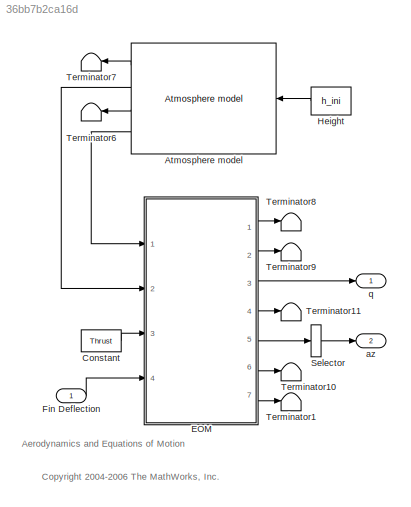
MODEL slx_36bb7b2ca16d
KIND model
CONFIG AbsTol = 1e-6
CONFIG EnableMultiTasking = off
CONFIG FixedStep = auto
CONFIG MaxStep = auto
CONFIG MinStep = auto
CONFIG RelTol = 1e-3
CONFIG SampleTimeConstraint = Unconstrained
CONFIG Solver = ode45
CONFIG SolverName = ode45
CONFIG StartTime = 0.0
CONFIG StopTime = 10.0
WORKSPACE source: MATLAB code (in-file)
WORKSPACE code: scd_aero_guid_dat
BLOCK [Reference] Atmosphere model  REF=aerospace/Atmosphere/Atmosphere  (lib defined in mdl_cf564d925549, slx_1354fe9238a2, +3 more)
model
  Ports = [1, 4]
  SourceBlock = aerospace/Atmosphere/Atmosphere\nmodel
  SourceProductBaseCode = SL
  SourceProductName = Simulink
  SourceType = Atmosphere Model
BLOCK [Constant] Constant
  Value = Thrust
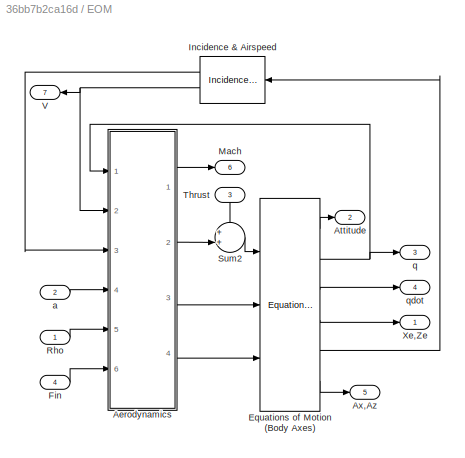
BLOCK [SubSystem] EOM
  Ports = [4, 7]
  RequestExecContextInheritance = off
BLOCK [Reference] EOM/ Equations of Motion (Body Axes)  REF=aerospace/3DoF  (lib defined in mdl_cf564d925549, slx_1354fe9238a2, +3 more)
Equations
of
Motion / Equations of Motion
(Body Axes)
  Ports = [3, 6]
  SourceBlock = aerospace/3DoF\nEquations\nof\nMotion / Equations of Motion\n(Body Axes)
  SourceProductBaseCode = SL
  SourceProductName = Simulink
  SourceType = 3 DOF equations of motion
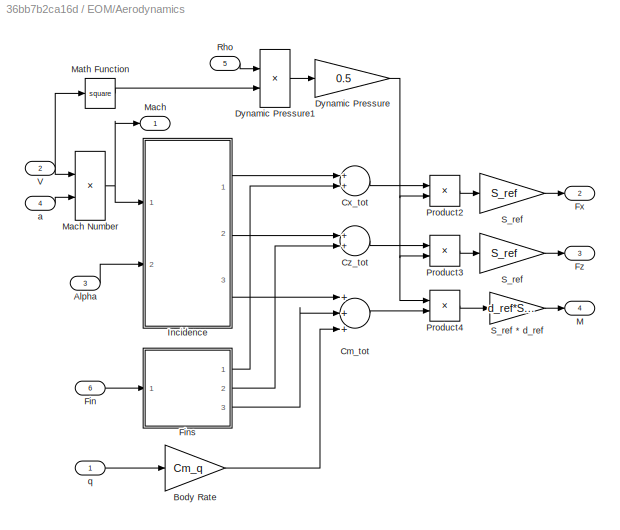
BLOCK [SubSystem] EOM/Aerodynamics
  Ports = [6, 4]
  RequestExecContextInheritance = off
BLOCK [Outport] EOM/Aerodynamics/ M
  IconDisplay = Port number
  InitialOutput = 0
  Port = 4
BLOCK [Outport] EOM/Aerodynamics/ Mach
  IconDisplay = Port number
  InitialOutput = 0
BLOCK [Inport] EOM/Aerodynamics/Alpha
  IconDisplay = Port number
  Port = 3
BLOCK [Gain] EOM/Aerodynamics/Body Rate
  Gain = Cm_q
BLOCK [Sum] EOM/Aerodynamics/Cm_tot
  Inputs = +++
  Ports = [3, 1]
BLOCK [Sum] EOM/Aerodynamics/Cx_tot
  Ports = [2, 1]
BLOCK [Sum] EOM/Aerodynamics/Cz_tot
  Ports = [2, 1]
BLOCK [Gain] EOM/Aerodynamics/Dynamic Pressure
  Gain = 0.5
BLOCK [Product] EOM/Aerodynamics/Dynamic Pressure1
  Ports = [2, 1]
  RndMeth = Floor
BLOCK [Inport] EOM/Aerodynamics/Fin
  IconDisplay = Port number
  Port = 6
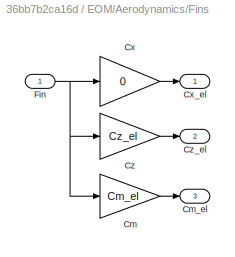
BLOCK [SubSystem] EOM/Aerodynamics/Fins
  Ports = [1, 3]
  RequestExecContextInheritance = off
BLOCK [Gain] EOM/Aerodynamics/Fins/Cm
  Gain = Cm_el
BLOCK [Outport] EOM/Aerodynamics/Fins/Cm_el
  IconDisplay = Port number
  InitialOutput = 0
  Port = 3
BLOCK [Gain] EOM/Aerodynamics/Fins/Cx
  Gain = 0
BLOCK [Outport] EOM/Aerodynamics/Fins/Cx_el
  IconDisplay = Port number
  InitialOutput = 0
BLOCK [Gain] EOM/Aerodynamics/Fins/Cz
  Gain = Cz_el
BLOCK [Outport] EOM/Aerodynamics/Fins/Cz_el
  IconDisplay = Port number
  InitialOutput = 0
  Port = 2
BLOCK [Inport] EOM/Aerodynamics/Fins/Fin
  IconDisplay = Port number
BLOCK [Outport] EOM/Aerodynamics/Fx
  IconDisplay = Port number
  InitialOutput = [0]
  Port = 2
BLOCK [Outport] EOM/Aerodynamics/Fz
  IconDisplay = Port number
  InitialOutput = 0
  Port = 3
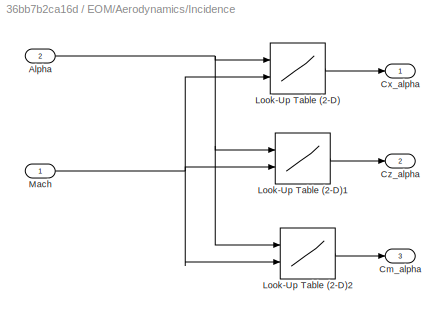
BLOCK [SubSystem] EOM/Aerodynamics/Incidence
  Ports = [2, 3]
  RequestExecContextInheritance = off
BLOCK [Inport] EOM/Aerodynamics/Incidence/Alpha
  IconDisplay = Port number
  Port = 2
BLOCK [Outport] EOM/Aerodynamics/Incidence/Cm_alpha
  IconDisplay = Port number
  InitialOutput = 0
  Port = 3
BLOCK [Outport] EOM/Aerodynamics/Incidence/Cx_alpha
  IconDisplay = Port number
  InitialOutput = 0
BLOCK [Outport] EOM/Aerodynamics/Incidence/Cz_alpha
  IconDisplay = Port number
  InitialOutput = 0
  Port = 2
BLOCK [Lookup2D] EOM/Aerodynamics/Incidence/Look-Up Table (2-D)
  ColumnIndex = Mach_vec
  InputSameDT = off
  RowIndex = alpha_vec
  Table = Cx_alpha
BLOCK [Lookup2D] EOM/Aerodynamics/Incidence/Look-Up Table (2-D)1
  ColumnIndex = Mach_vec
  InputSameDT = off
  RowIndex = alpha_vec
  Table = Cz_alpha
BLOCK [Lookup2D] EOM/Aerodynamics/Incidence/Look-Up Table (2-D)2
  ColumnIndex = Mach_vec
  InputSameDT = off
  RowIndex = alpha_vec
  Table = Cm_alpha
BLOCK [Inport] EOM/Aerodynamics/Incidence/Mach
  IconDisplay = Port number
BLOCK [Product] EOM/Aerodynamics/Mach Number
  Inputs = */
  Ports = [2, 1]
  RndMeth = Floor
BLOCK [Math] EOM/Aerodynamics/Math Function
  Operator = square
  Ports = [1, 1]
BLOCK [Product] EOM/Aerodynamics/Product2
  Ports = [2, 1]
  RndMeth = Floor
BLOCK [Product] EOM/Aerodynamics/Product3
  Ports = [2, 1]
  RndMeth = Floor
BLOCK [Product] EOM/Aerodynamics/Product4
  Ports = [2, 1]
  RndMeth = Floor
BLOCK [Inport] EOM/Aerodynamics/Rho
  IconDisplay = Port number
  Port = 5
BLOCK [Gain] EOM/Aerodynamics/S_ref
  Gain = S_ref
BLOCK [Gain] EOM/Aerodynamics/S_ref 
  Gain = S_ref
BLOCK [Gain] EOM/Aerodynamics/S_ref * d_ref
  Gain = d_ref*S_ref
BLOCK [Inport] EOM/Aerodynamics/V
  IconDisplay = Port number
  Port = 2
BLOCK [Inport] EOM/Aerodynamics/a
  IconDisplay = Port number
  Port = 4
BLOCK [Inport] EOM/Aerodynamics/q
  IconDisplay = Port number
BLOCK [Outport] EOM/Attitude
  IconDisplay = Port number
  InitialOutput = 0
  Port = 2
BLOCK [Outport] EOM/Ax,Az
  IconDisplay = Port number
  InitialOutput = 0
  Port = 5
BLOCK [Inport] EOM/Fin
  IconDisplay = Port number
  Port = 4
BLOCK [Reference] EOM/Incidence & Airspeed  REF=aerospace/3DoF  (lib defined in mdl_cf564d925549, slx_1354fe9238a2, +3 more)
Equations
of
Motion /Incidence 
& Airspeed
  Ports = [1, 2]
  SourceBlock = aerospace/3DoF\nEquations\nof\nMotion /Incidence \n& Airspeed
  SourceProductBaseCode = SL
  SourceProductName = Simulink
  SourceType = Incidence and Airspeed
BLOCK [Outport] EOM/Mach
  IconDisplay = Port number
  InitialOutput = 0
  Port = 6
BLOCK [Inport] EOM/Rho
  IconDisplay = Port number
BLOCK [Sum] EOM/Sum2
  IconShape = round
  Inputs = ++|
  Ports = [2, 1]
BLOCK [Inport] EOM/Thrust
  IconDisplay = Port number
  Port = 3
BLOCK [Outport] EOM/V
  IconDisplay = Port number
  InitialOutput = 0
  Port = 7
BLOCK [Outport] EOM/Xe,Ze
  IconDisplay = Port number
  InitialOutput = 0
BLOCK [Inport] EOM/a
  IconDisplay = Port number
  Port = 2
BLOCK [Outport] EOM/q
  IconDisplay = Port number
  InitialOutput = 0
  Port = 3
BLOCK [Outport] EOM/qdot
  IconDisplay = Port number
  InitialOutput = 0
  Port = 4
BLOCK [Inport] Fin Deflection
  IconDisplay = Port number
BLOCK [Constant] Height
  Value = h_ini
BLOCK [Selector] Selector
  IndexOptions = Index vector (dialog)
  Indices = [2]
  InputPortWidth = 2
  OutputSizes = 1
  Ports = [1, 1]
BLOCK [Terminator] Terminator1
BLOCK [Terminator] Terminator10
BLOCK [Terminator] Terminator11
BLOCK [Terminator] Terminator6
BLOCK [Terminator] Terminator7
BLOCK [Terminator] Terminator8
BLOCK [Terminator] Terminator9
BLOCK [Outport] az
  IconDisplay = Port number
  InitialOutput = 0
  Port = 2
BLOCK [Outport] q
  IconDisplay = Port number
  InitialOutput = 0
ANNOTATION (root): Aerodynamics and Equations of Motion
ANNOTATION (root): <copyright redacted>
LINE Atmosphere model:1 -> Terminator7:1
LINE Atmosphere model:2 -> EOM:2
LINE Atmosphere model:3 -> Terminator6:1
LINE Atmosphere model:4 -> EOM:1
LINE Constant:1 -> EOM:3
LINE EOM/ Equations of Motion (Body Axes):1 -> EOM/Attitude:1
NET EOM/ Equations of Motion (Body Axes):2 -> EOM/Aerodynamics:1, EOM/q:1
LINE EOM/ Equations of Motion (Body Axes):3 -> EOM/qdot:1
LINE EOM/ Equations of Motion (Body Axes):4 -> EOM/Xe,Ze:1
LINE EOM/ Equations of Motion (Body Axes):5 -> EOM/Incidence & Airspeed:1
LINE EOM/ Equations of Motion (Body Axes):6 -> EOM/Ax,Az:1
LINE EOM/Aerodynamics/Alpha:1 -> EOM/Aerodynamics/Incidence:2
LINE EOM/Aerodynamics/Body Rate:1 -> EOM/Aerodynamics/Cm_tot:3
LINE EOM/Aerodynamics/Cm_tot:1 -> EOM/Aerodynamics/Product4:2
LINE EOM/Aerodynamics/Cx_tot:1 -> EOM/Aerodynamics/Product2:1
LINE EOM/Aerodynamics/Cz_tot:1 -> EOM/Aerodynamics/Product3:1
LINE EOM/Aerodynamics/Dynamic Pressure1:1 -> EOM/Aerodynamics/Dynamic Pressure:1
NET EOM/Aerodynamics/Dynamic Pressure:1 -> EOM/Aerodynamics/Product2:2, EOM/Aerodynamics/Product3:2, EOM/Aerodynamics/Product4:1
LINE EOM/Aerodynamics/Fin:1 -> EOM/Aerodynamics/Fins:1
LINE EOM/Aerodynamics/Fins/Cm:1 -> EOM/Aerodynamics/Fins/Cm_el:1
LINE EOM/Aerodynamics/Fins/Cx:1 -> EOM/Aerodynamics/Fins/Cx_el:1
LINE EOM/Aerodynamics/Fins/Cz:1 -> EOM/Aerodynamics/Fins/Cz_el:1
NET EOM/Aerodynamics/Fins/Fin:1 -> EOM/Aerodynamics/Fins/Cm:1, EOM/Aerodynamics/Fins/Cx:1, EOM/Aerodynamics/Fins/Cz:1
LINE EOM/Aerodynamics/Fins:1 -> EOM/Aerodynamics/Cx_tot:2
LINE EOM/Aerodynamics/Fins:2 -> EOM/Aerodynamics/Cz_tot:2
LINE EOM/Aerodynamics/Fins:3 -> EOM/Aerodynamics/Cm_tot:2
NET EOM/Aerodynamics/Incidence/Alpha:1 -> EOM/Aerodynamics/Incidence/Look-Up Table (2-D)1:1, EOM/Aerodynamics/Incidence/Look-Up Table (2-D)2:1, EOM/Aerodynamics/Incidence/Look-Up Table (2-D):1
LINE EOM/Aerodynamics/Incidence/Look-Up Table (2-D)1:1 -> EOM/Aerodynamics/Incidence/Cz_alpha:1
LINE EOM/Aerodynamics/Incidence/Look-Up Table (2-D)2:1 -> EOM/Aerodynamics/Incidence/Cm_alpha:1
LINE EOM/Aerodynamics/Incidence/Look-Up Table (2-D):1 -> EOM/Aerodynamics/Incidence/Cx_alpha:1
NET EOM/Aerodynamics/Incidence/Mach:1 -> EOM/Aerodynamics/Incidence/Look-Up Table (2-D)1:2, EOM/Aerodynamics/Incidence/Look-Up Table (2-D)2:2, EOM/Aerodynamics/Incidence/Look-Up Table (2-D):2
LINE EOM/Aerodynamics/Incidence:1 -> EOM/Aerodynamics/Cx_tot:1
LINE EOM/Aerodynamics/Incidence:2 -> EOM/Aerodynamics/Cz_tot:1
LINE EOM/Aerodynamics/Incidence:3 -> EOM/Aerodynamics/Cm_tot:1
NET EOM/Aerodynamics/Mach Number:1 -> EOM/Aerodynamics/ Mach:1, EOM/Aerodynamics/Incidence:1
LINE EOM/Aerodynamics/Math Function:1 -> EOM/Aerodynamics/Dynamic Pressure1:2
LINE EOM/Aerodynamics/Product2:1 -> EOM/Aerodynamics/S_ref:1
LINE EOM/Aerodynamics/Product3:1 -> EOM/Aerodynamics/S_ref :1
LINE EOM/Aerodynamics/Product4:1 -> EOM/Aerodynamics/S_ref * d_ref:1
LINE EOM/Aerodynamics/Rho:1 -> EOM/Aerodynamics/Dynamic Pressure1:1
LINE EOM/Aerodynamics/S_ref * d_ref:1 -> EOM/Aerodynamics/ M:1
LINE EOM/Aerodynamics/S_ref :1 -> EOM/Aerodynamics/Fz:1
LINE EOM/Aerodynamics/S_ref:1 -> EOM/Aerodynamics/Fx:1
NET EOM/Aerodynamics/V:1 -> EOM/Aerodynamics/Mach Number:1, EOM/Aerodynamics/Math Function:1
LINE EOM/Aerodynamics/a:1 -> EOM/Aerodynamics/Mach Number:2
LINE EOM/Aerodynamics/q:1 -> EOM/Aerodynamics/Body Rate:1
LINE EOM/Aerodynamics:1 -> EOM/Mach:1
LINE EOM/Aerodynamics:2 -> EOM/Sum2:2
LINE EOM/Aerodynamics:3 -> EOM/ Equations of Motion (Body Axes):2
LINE EOM/Aerodynamics:4 -> EOM/ Equations of Motion (Body Axes):3
LINE EOM/Fin:1 -> EOM/Aerodynamics:6
LINE EOM/Incidence & Airspeed:1 -> EOM/Aerodynamics:3
NET EOM/Incidence & Airspeed:2 -> EOM/Aerodynamics:2, EOM/V:1
LINE EOM/Rho:1 -> EOM/Aerodynamics:5
LINE EOM/Sum2:1 -> EOM/ Equations of Motion (Body Axes):1
LINE EOM/Thrust:1 -> EOM/Sum2:1
LINE EOM/a:1 -> EOM/Aerodynamics:4
LINE EOM:1 -> Terminator8:1
LINE EOM:2 -> Terminator9:1
LINE EOM:3 -> q:1
LINE EOM:4 -> Terminator11:1
LINE EOM:5 -> Selector:1
LINE EOM:6 -> Terminator10:1
LINE EOM:7 -> Terminator1:1
LINE Fin Deflection:1 -> EOM:4
LINE Height:1 -> Atmosphere model:1
LINE Selector:1 -> az:1
note: NET lines group one-source signal fan-out (src -> all destinations, sorted); 1:1 wires keep LINE
